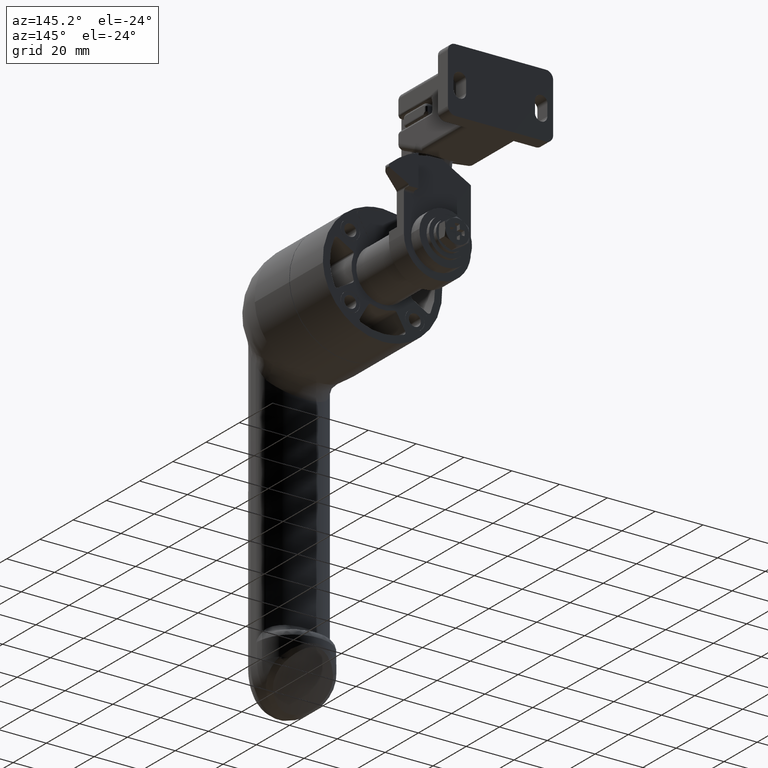
[diagram: clean part render]
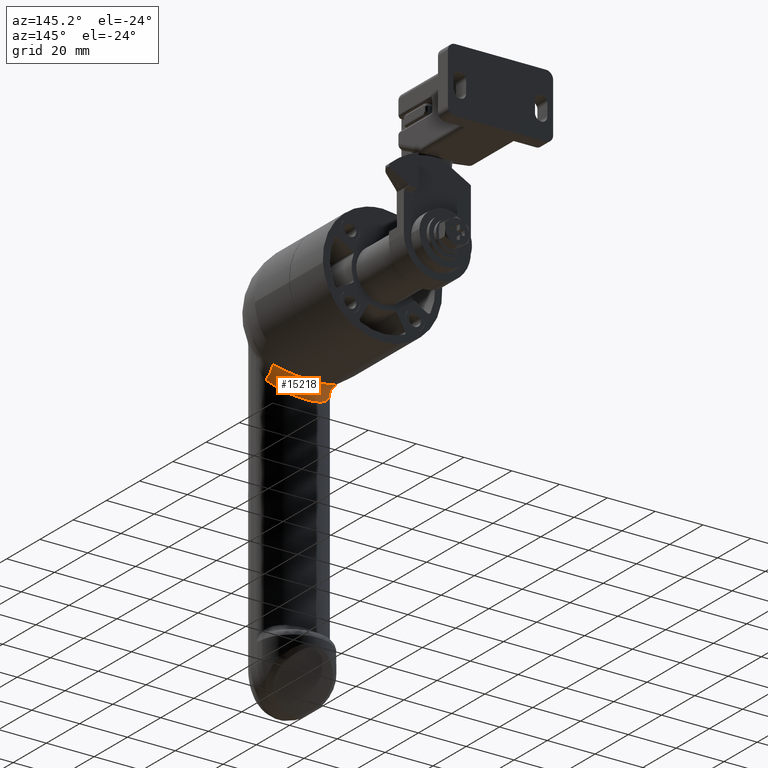
[diagram: same view with one face highlighted and labeled with its STEP entity id]
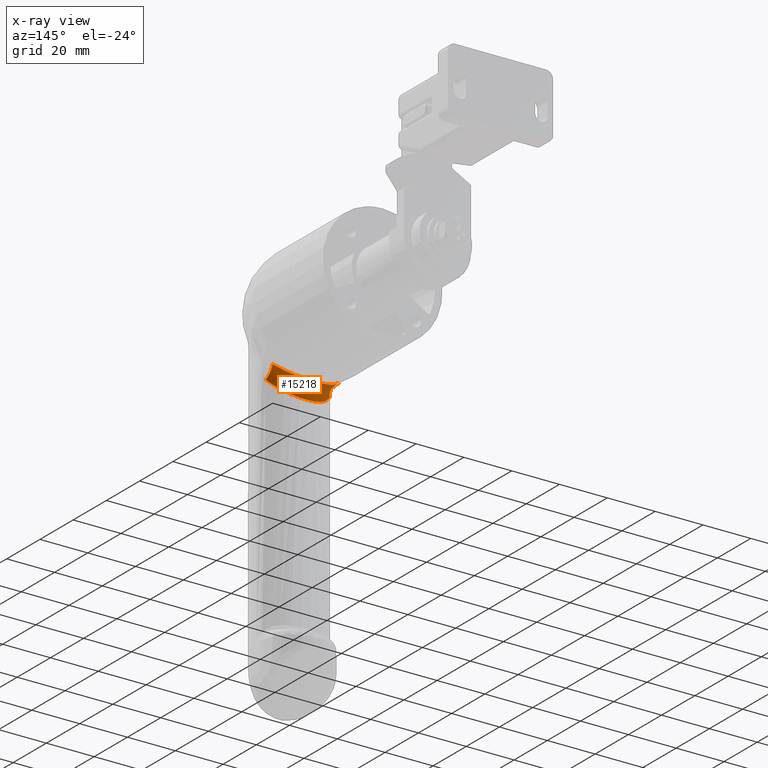
[diagram: x-ray of the same camera — body ghosted, the highlighted face saturated]
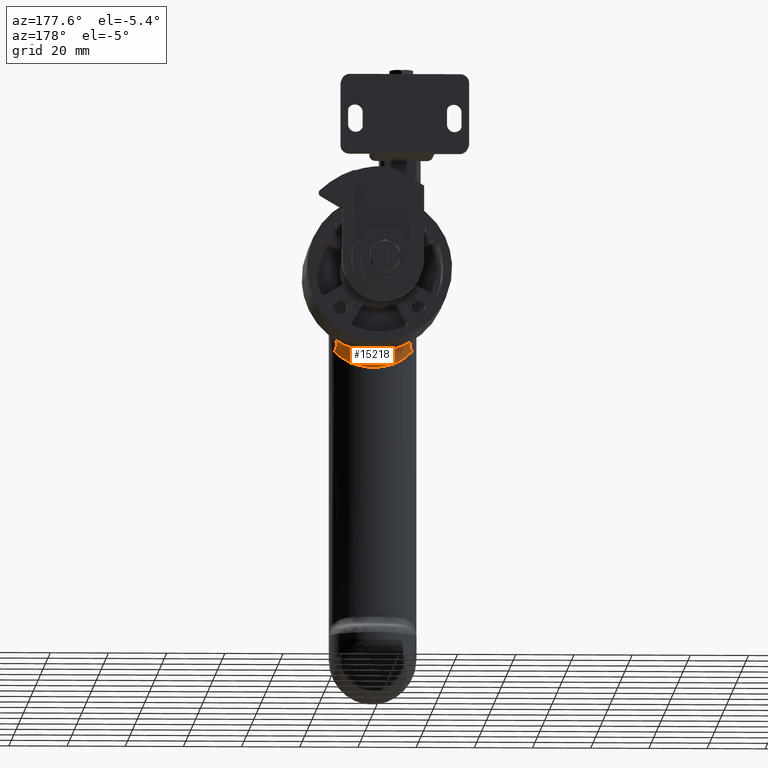
[diagram: same view with one face highlighted and labeled with its STEP entity id]
A machine part, auxiliary view. The second image highlights one B-rep face of the part: STEP entity #15218.
The next image is the same camera in x-ray: the body ghosted, the highlighted face saturated — about 0% of this face is hidden behind the body in this view.
A second angle (auxiliary view) of the same face is appended — the face is thin or edge-on in the first view.
In plain terms, the highlighted face is a freeform B-spline surface patch.
Its self-contained STEP definition (entity closure, byte-faithful):
#13865=CARTESIAN_POINT('',(13.333333333333179,-75.092880149649190,-24.089006736137449));
#13866=VERTEX_POINT('',#13865);
#13911=CARTESIAN_POINT('',(-13.333333333333499,-75.092880149649503,-24.089006736328749));
#13912=VERTEX_POINT('',#13911);
#13918=CARTESIAN_POINT('',(-13.333333333333499,-75.092880149649503,-24.089006736328749));
#13919=CARTESIAN_POINT('',(-12.953682260929110,-74.753309907398716,-24.533486585743820));
#13920=CARTESIAN_POINT('',(-12.550705085847779,-74.418916304546812,-24.958489892095280));
#13921=CARTESIAN_POINT('',(-11.907806965949829,-73.929009828594431,-25.566416686007109));
#13922=CARTESIAN_POINT('',(-11.687092281571580,-73.767658138958325,-25.764121728547629));
#13923=CARTESIAN_POINT('',(-11.345853449083391,-73.529090140687813,-26.053148278817378));
#13924=CARTESIAN_POINT('',(-11.230425931521960,-73.450159145845916,-26.148215548733809));
#13925=CARTESIAN_POINT('',(-10.997049751107740,-73.294174798202889,-26.335061954216489));
#13926=CARTESIAN_POINT('',(-10.878987817795741,-73.217041222842965,-26.426938587265390));
#13927=CARTESIAN_POINT('',(-10.281715847701120,-72.835862412048286,-26.878604282344991));
#13928=CARTESIAN_POINT('',(-9.781672547982286,-72.545254435190230,-27.215304453380870));
#13929=CARTESIAN_POINT('',(-8.733960325046391,-71.998133496520509,-27.838865532411791));
#13930=CARTESIAN_POINT('',(-8.186317692142470,-71.741594607511843,-28.125747760163971));
#13931=CARTESIAN_POINT('',(-7.468938375465602,-71.446320247513469,-28.451653825871720));
#13932=CARTESIAN_POINT('',(-7.323815660863367,-71.388539374137750,-28.515194449875249));
#13933=CARTESIAN_POINT('',(-7.030174477049830,-71.275647159790921,-28.638929968657450));
#13934=CARTESIAN_POINT('',(-6.881573617743552,-71.220514852047685,-28.699146901835871));
#13935=CARTESIAN_POINT('',(-6.433862058406594,-71.060467521921893,-28.873418043679528));
#13936=CARTESIAN_POINT('',(-6.131793586475455,-70.960482768428079,-28.981556263683501));
#13937=CARTESIAN_POINT('',(-5.214734570358906,-70.681227282393451,-29.282081494191630));
#13938=CARTESIAN_POINT('',(-4.588927038479926,-70.522601096949316,-29.450674251572678));
#13939=CARTESIAN_POINT('',(-3.627677066650481,-70.329036908204429,-29.655256439307870));
#13940=CARTESIAN_POINT('',(-3.303495312793796,-70.271923764261828,-29.715376472845509));
#13941=CARTESIAN_POINT('',(-2.811374116093991,-70.197886630437281,-29.793131427408809));
#13942=CARTESIAN_POINT('',(-2.563850336605560,-70.163777859200223,-29.828900031290559));
#13943=CARTESIAN_POINT('',(-2.314083831365283,-70.134147956501224,-29.859921031513259));
#13944=CARTESIAN_POINT('',(-2.147068327981364,-70.115403977255070,-29.879535383608982));
#13945=CARTESIAN_POINT('',(-2.063210329120381,-70.106527203742019,-29.888819281309640));
#13946=CARTESIAN_POINT('',(-1.308753052301455,-70.031490865492074,-29.967263290953401));
#13947=CARTESIAN_POINT('',(-0.640655295446891,-69.999182982970979,-30.000851059532149));
#13948=CARTESIAN_POINT('',(0.690689661880406,-70.000848309309902,-29.999116343598850));
#13949=CARTESIAN_POINT('',(1.353936120480417,-70.034829821737077,-29.963781572097009));
#13950=CARTESIAN_POINT('',(2.345169748793125,-70.135195201659926,-29.858844567561249));
#13951=CARTESIAN_POINT('',(2.674973408612486,-70.176897752358713,-29.815182357221651));
#13952=CARTESIAN_POINT('',(3.168753832122901,-70.251918687474259,-29.736381525260310));
#13953=CARTESIAN_POINT('',(3.333400997877139,-70.279041751676957,-29.707855576673111));
#13954=CARTESIAN_POINT('',(3.661471934808325,-70.337309957299382,-29.646466651801660));
#13955=CARTESIAN_POINT('',(3.824194797521913,-70.368324648367249,-29.613741109428378));
#13956=CARTESIAN_POINT('',(4.631427884554086,-70.532484418306552,-29.440187702741142));
#13957=CARTESIAN_POINT('',(5.256870509650693,-70.692797085815982,-29.269716695606359));
#13958=CARTESIAN_POINT('',(6.470380373573987,-71.064928050157349,-28.869064103030599));
#13959=CARTESIAN_POINT('',(7.058428305708368,-71.276776804472192,-28.638855213195079));
#13960=CARTESIAN_POINT('',(7.913741876383473,-71.629702948299709,-28.249210765465008));
#13961=CARTESIAN_POINT('',(8.194376213493325,-71.753214763192503,-28.111920837399602));
#13962=CARTESIAN_POINT('',(8.746809893951001,-72.011495624000872,-27.822382651020220));
#13963=CARTESIAN_POINT('',(9.018651473734781,-72.146352918898486,-27.670021926731231));
#13964=CARTESIAN_POINT('',(9.810458395392399,-72.561248323370421,-27.196895493478991));
#13965=CARTESIAN_POINT('',(10.309538480561470,-72.852712420614282,-26.858882860775211));
#13966=CARTESIAN_POINT('',(11.256497748222330,-73.458920426520777,-26.140074656710230));
#13967=CARTESIAN_POINT('',(11.704345344827370,-73.773687290748242,-25.759259768228361));
#13968=CARTESIAN_POINT('',(12.553199112363790,-74.421100291281817,-24.955675389492189));
#13969=CARTESIAN_POINT('',(12.954186867272350,-74.753761241032862,-24.532895813223710));
#13970=CARTESIAN_POINT('',(13.333333333333171,-75.092880149649176,-24.089006736137510));
#13971=B_SPLINE_CURVE_WITH_KNOTS('',3,(#13918,#13919,#13920,#13921,#13922,#13923,#13924,#13925,#13926,#13927,#13928,#13929,#13930,#13931,#13932,#13933,#13934,#13935,#13936,#13937,#13938,#13939,#13940,#13941,#13942,#13943,#13944,#13945,#13946,#13947,#13948,#13949,#13950,#13951,#13952,#13953,#13954,#13955,#13956,#13957,#13958,#13959,#13960,#13961,#13962,#13963,#13964,#13965,#13966,#13967,#13968,#13969,#13970),.UNSPECIFIED.,.F.,.U.,(4,2,2,2,2,2,2,2,2,2,2,2,1,2,2,2,2,2,2,2,2,2,2,2,2,2,4),(0.0,0.062499999999998,0.093749999999997,0.109374999999996,0.124999999999996,0.187499999999996,0.249999999999996,0.265624999999996,0.281249999999996,0.312499999999996,0.374999999999997,0.406249999999997,0.421874999999997,0.429687499999997,0.437499999999997,0.499999999999997,0.562499999999997,0.593749999999997,0.609374999999997,0.624999999999997,0.687499999999998,0.749999999999999,0.781249999999999,0.812499999999999,0.874999999999999,0.937500000000000,1.0),.UNSPECIFIED.);
#13972=EDGE_CURVE('',#13912,#13866,#13971,.T.);
#14897=CARTESIAN_POINT('',(13.891201962038741,-70.268496706545804,-20.077515458229449));
#14898=VERTEX_POINT('',#14897);
#14899=CARTESIAN_POINT('',(13.333333333333190,-75.092880149649162,-24.089006736137460));
#14900=CARTESIAN_POINT('',(11.603179456563311,-73.545383477652265,-20.763944317490601));
#14901=CARTESIAN_POINT('',(13.891201962038769,-70.268496706545832,-20.077515458229438));
#14909=(BOUNDED_CURVE()B_SPLINE_CURVE(2,(#14899,#14900,#14901),.UNSPECIFIED.,.F.,.U.)CURVE()GEOMETRIC_REPRESENTATION_ITEM()QUASI_UNIFORM_CURVE()RATIONAL_B_SPLINE_CURVE((1.0,0.776672676964270,1.0))REPRESENTATION_ITEM(''));
#14910=EDGE_CURVE('',#13866,#14898,#14909,.T.);
#14939=CARTESIAN_POINT('',(14.126809920212434,-70.395802500286749,-19.879687179754040));
#14940=CARTESIAN_POINT('',(14.060073021275551,-70.336464047816278,-19.942091366762739));
#14941=CARTESIAN_POINT('',(13.993338118469334,-70.277127370185681,-20.004493687234188));
#14942=CARTESIAN_POINT('',(13.092612256592522,-69.476255894356200,-20.846742368601877));
#14943=CARTESIAN_POINT('',(12.170783702476573,-68.775712345249715,-21.537338923678114));
#14944=CARTESIAN_POINT('',(10.642217982532925,-67.816282871036336,-22.448679042786807));
#14945=CARTESIAN_POINT('',(10.108280491593851,-67.511719808861997,-22.731545333693127));
#14946=CARTESIAN_POINT('',(9.267405791159217,-67.082155672258921,-23.124025981404220));
#14947=CARTESIAN_POINT('',(8.981255167577965,-66.943996623528804,-23.249100322322736));
#14948=CARTESIAN_POINT('',(8.402640462568924,-66.680799729594753,-23.485595501791785));
#14949=CARTESIAN_POINT('',(8.109395259459015,-66.555355294896898,-23.597388014148041));
#14950=CARTESIAN_POINT('',(6.623432979145835,-65.959747357929288,-24.124743570442853));
#14951=CARTESIAN_POINT('',(5.372102587736120,-65.583405490908135,-24.446916659705202));
#14952=CARTESIAN_POINT('',(3.722254677917076,-65.259164543718654,-24.722383181518122));
#14953=CARTESIAN_POINT('',(3.387156472622886,-65.201631061563219,-24.771072571741129));
#14954=CARTESIAN_POINT('',(2.718166319259025,-65.103417925738441,-24.854007022380461));
#14955=CARTESIAN_POINT('',(2.383165171682277,-65.062480187415574,-24.888471753307918));
#14956=CARTESIAN_POINT('',(1.376680442440033,-64.963957440511422,-24.971309808667268));
#14957=CARTESIAN_POINT('',(0.703711474151829,-64.930605299280401,-24.999208501688589));
#14958=CARTESIAN_POINT('',(-0.646098450064478,-64.928755483969084,-25.000758421210957));
#14959=CARTESIAN_POINT('',(-1.322944559527508,-64.960252017833781,-24.974416556524858));
#14960=CARTESIAN_POINT('',(-2.680578572353370,-65.090140618479651,-24.865223201416249));
#14961=CARTESIAN_POINT('',(-3.350503086939298,-65.187684397032370,-24.783076018825199));
#14962=CARTESIAN_POINT('',(-4.661616750066116,-65.442303382415801,-24.566825719939946));
#14963=CARTESIAN_POINT('',(-5.304784237487761,-65.599582909712595,-24.432555673666648));
#14964=CARTESIAN_POINT('',(-6.251333827441839,-65.878409869683722,-24.191672340137544));
#14965=CARTESIAN_POINT('',(-6.563813008163212,-65.978517825542980,-24.104778752174177));
#14966=CARTESIAN_POINT('',(-7.182684276500710,-66.192853672888347,-23.917528915006837));
#14967=CARTESIAN_POINT('',(-7.489725806753028,-66.307382423528665,-23.816903392980755));
#14968=CARTESIAN_POINT('',(-8.991822742816593,-66.907504746523358,-23.285751529081498));
#14969=CARTESIAN_POINT('',(-10.101165832147688,-67.478653974437606,-22.768994703950959));
#14970=CARTESIAN_POINT('',(-11.641232411940409,-68.442379148638167,-21.854153057472121));
#14971=CARTESIAN_POINT('',(-12.134899430277557,-68.782655711472415,-21.524591566695584));
#14972=CARTESIAN_POINT('',(-13.067989007650851,-69.484302108073763,-20.826558366295469));
#14973=CARTESIAN_POINT('',(-13.509178082325926,-69.846633864293963,-20.457222764478132));
#14974=CARTESIAN_POINT('',(-13.993400802232754,-70.277184289991979,-20.004434782587673));
#14975=CARTESIAN_POINT('',(-14.060198392899091,-70.336577891148266,-19.941973553426880));
#14976=CARTESIAN_POINT('',(-14.126997983839891,-70.395973270864360,-19.879510453845327));
#14977=CARTESIAN_POINT('',(14.109045140449435,-70.420833471498753,-19.885121141725488));
#14978=CARTESIAN_POINT('',(14.042343445263548,-70.361584113697177,-19.947479348856657));
#14979=CARTESIAN_POINT('',(13.975642749833137,-70.302335643952048,-20.009836621334529));
#14980=CARTESIAN_POINT('',(13.075281201224804,-69.502568210821650,-20.851568331219859));
#14981=CARTESIAN_POINT('',(12.154034761737170,-68.803132420886328,-21.541598071765836));
#14982=CARTESIAN_POINT('',(10.626836920754059,-67.845380611585369,-22.452043728320866));
#14983=CARTESIAN_POINT('',(10.093432357418903,-67.541373498124557,-22.734606997458766));
#14984=CARTESIAN_POINT('',(9.253491823515729,-67.112627714679377,-23.126636083525206));
#14985=CARTESIAN_POINT('',(8.967672908424287,-66.974736769029946,-23.251561403377117));
#14986=CARTESIAN_POINT('',(8.389757310924100,-66.712059805387113,-23.487766122467956));
#14987=CARTESIAN_POINT('',(8.096880274680332,-66.586868177823220,-23.599416696175467));
#14988=CARTESIAN_POINT('',(6.612837739447754,-65.992468995612654,-24.126089493936995));
#14989=CARTESIAN_POINT('',(5.363348732352754,-65.616969217472587,-24.447781097517609));
#14990=CARTESIAN_POINT('',(3.716112280373017,-65.293467464168941,-24.722823385042950));
#14991=CARTESIAN_POINT('',(3.381550878479133,-65.236065907605706,-24.771436882828219));
#14992=CARTESIAN_POINT('',(2.713644852838322,-65.138079087751493,-24.854241020549217));
#14993=CARTESIAN_POINT('',(2.379193028878141,-65.097236494368914,-24.888650920957115));
#14994=CARTESIAN_POINT('',(1.374369864063181,-64.998943123637432,-24.971356686112603));
#14995=CARTESIAN_POINT('',(0.702530947525883,-64.965669983474285,-24.999209783847665));
#14996=CARTESIAN_POINT('',(-0.645014613178082,-64.963824517423433,-25.000757192678769));
#14997=CARTESIAN_POINT('',(-1.320723544661858,-64.995246403244934,-24.974458412152860));
#14998=CARTESIAN_POINT('',(-2.676113311363195,-65.124832230712926,-24.865439654161179));
#14999=CARTESIAN_POINT('',(-3.344946607377731,-65.222149051298970,-24.783423186972328));
#15000=CARTESIAN_POINT('',(-4.653989675634112,-65.476189898584295,-24.567505099498831));
#15001=CARTESIAN_POINT('',(-5.296172744908835,-65.633116216797859,-24.433437499394032));
#15002=CARTESIAN_POINT('',(-6.241341836899719,-65.911338150528238,-24.192899615792911));
#15003=CARTESIAN_POINT('',(-6.553375454999378,-66.011230844007571,-24.106128588060177));
#15004=CARTESIAN_POINT('',(-7.171388751607937,-66.225113317786978,-23.919136111913357));
#15005=CARTESIAN_POINT('',(-7.478017064425187,-66.339403114842042,-23.818645824112949));
#15006=CARTESIAN_POINT('',(-8.978145689001625,-66.938285301455196,-23.288191608787610));
#15007=CARTESIAN_POINT('',(-10.086264046565978,-67.508327206341036,-22.772049740987761));
#15008=CARTESIAN_POINT('',(-11.624959608095955,-68.470389151792972,-21.858099027691953));
#15009=CARTESIAN_POINT('',(-12.118245468094381,-68.810101388024577,-21.528832787091794));
#15010=CARTESIAN_POINT('',(-13.050723703662774,-69.510648152290969,-20.831356503183915));
#15011=CARTESIAN_POINT('',(-13.491682377657567,-69.872442705151684,-20.462283317576187));
#15012=CARTESIAN_POINT('',(-13.975708393919382,-70.302394545170131,-20.009775106996802));
#15013=CARTESIAN_POINT('',(-14.042474735509595,-70.361701918025219,-19.947356318037379));
#15014=CARTESIAN_POINT('',(-14.109242078975527,-70.421010180828944,-19.884936592440258));
#15015=CARTESIAN_POINT('',(11.796693136783503,-73.678989058452473,-20.592432632223744));
#15016=CARTESIAN_POINT('',(11.732313023970697,-73.634539785643696,-20.649492896044009));
#15017=CARTESIAN_POINT('',(11.667808584059921,-73.590004675006242,-20.706663351299184));
#15018=CARTESIAN_POINT('',(10.784645607054253,-72.980251905332281,-21.489413027596928));
#15019=CARTESIAN_POINT('',(9.913611489310190,-72.470980826571051,-22.111323324539075));
#15020=CARTESIAN_POINT('',(8.534352893991759,-71.803921198000239,-22.909785257243723));
#15021=CARTESIAN_POINT('',(8.062392557460624,-71.597628809278177,-23.153404463109720));
#15022=CARTESIAN_POINT('',(7.335338847416138,-71.313445220809228,-23.486459771457056));
#15023=CARTESIAN_POINT('',(7.090508452460242,-71.223242695252139,-23.591700243775872));
#15024=CARTESIAN_POINT('',(6.600562070089785,-71.053418222769750,-23.789219081378793));
#15025=CARTESIAN_POINT('',(6.354768612398654,-70.973526398261498,-23.881813413513719));
#15026=CARTESIAN_POINT('',(5.121430892982198,-70.598431282375685,-24.315544340753707));
#15027=CARTESIAN_POINT('',(4.122236838960079,-70.375597090723261,-24.570340130433536));
#15028=CARTESIAN_POINT('',(2.839776127086609,-70.187466776043053,-24.785627243119450));
#15029=CARTESIAN_POINT('',(2.580906098695265,-70.154381258224007,-24.823471290351971));
#15030=CARTESIAN_POINT('',(2.066609223086537,-70.098197046012928,-24.887726871903794));
#15031=CARTESIAN_POINT('',(1.810312727760955,-70.074947352275515,-24.914310861004619));
#15032=CARTESIAN_POINT('',(1.042816207272089,-70.019171518378684,-24.978083308577126));
#15033=CARTESIAN_POINT('',(0.533021749553683,-70.000530158771795,-24.999393886224276));
#15034=CARTESIAN_POINT('',(-0.489383230634403,-69.999491996061408,-25.000580784066273));
#15035=CARTESIAN_POINT('',(-1.001998541026532,-70.017088350318630,-24.980464871361036));
#15036=CARTESIAN_POINT('',(-2.036955459030341,-70.090592668400163,-24.896422719176496));
#15037=CARTESIAN_POINT('',(-2.551103183645342,-70.146047148578887,-24.833022424668311));
#15038=CARTESIAN_POINT('',(-3.569684396765780,-70.293676431785769,-24.664089294213106));
#15039=CARTESIAN_POINT('',(-4.075617887160099,-70.385978799469413,-24.558423576474368));
#15040=CARTESIAN_POINT('',(-4.832634016496453,-70.553689095773336,-24.365925481481057));
#15041=CARTESIAN_POINT('',(-5.084642639257738,-70.614482484193559,-24.296072364203724));
#15042=CARTESIAN_POINT('',(-5.588340296813446,-70.746247261865406,-24.144382003852591));
#15043=CARTESIAN_POINT('',(-5.840580267946760,-70.817412514751055,-24.062320231773370));
#15044=CARTESIAN_POINT('',(-7.086668966193813,-71.195101422552781,-23.625643959881991));
#15045=CARTESIAN_POINT('',(-8.046758338888276,-71.569499976570000,-23.190171813644216));
#15046=CARTESIAN_POINT('',(-9.435491587650430,-72.239070120745495,-22.389020170019307));
#15047=CARTESIAN_POINT('',(-9.890713869702095,-72.481066356412796,-22.096112353624907));
#15048=CARTESIAN_POINT('',(-10.768970887430029,-72.992495945454593,-21.465470004194980));
#15049=CARTESIAN_POINT('',(-11.193537132852962,-73.262558508743624,-21.127011389916643));
#15050=CARTESIAN_POINT('',(-11.668262883109271,-73.590318331853410,-20.706260704992008));
#15051=CARTESIAN_POINT('',(-11.733220603291008,-73.635166395951217,-20.648688506216491));
#15052=CARTESIAN_POINT('',(-11.798052980965933,-73.679927921162431,-20.591227398835471));
#15053=CARTESIAN_POINT('',(13.538569303078056,-75.276755630233311,-23.889885496507961));
#15054=CARTESIAN_POINT('',(13.474625885900720,-75.219460614801108,-23.964850046220707));
#15055=CARTESIAN_POINT('',(13.410683426647600,-75.162166457694667,-24.039813472903759));
#15056=CARTESIAN_POINT('',(12.547553972677845,-74.388779335639327,-25.051709829353182));
#15057=CARTESIAN_POINT('',(11.663903342657990,-73.712315765507284,-25.881169454768845));
#15058=CARTESIAN_POINT('',(10.198732777290825,-72.786057885825912,-26.975241471334229));
#15059=CARTESIAN_POINT('',(9.686934485369331,-72.492043594676630,-27.314743342465142));
#15060=CARTESIAN_POINT('',(8.880954284348507,-72.077386620240276,-27.785707491965773));
#15061=CARTESIAN_POINT('',(8.606681282219046,-71.944026033766946,-27.935775002808793));
#15062=CARTESIAN_POINT('',(8.052094958471571,-71.689977965590529,-28.219498819599536));
#15063=CARTESIAN_POINT('',(7.771032867182714,-71.568898223329015,-28.353601190903877));
#15064=CARTESIAN_POINT('',(6.346824809641942,-70.994018724943729,-28.986138271033550));
#15065=CARTESIAN_POINT('',(5.147623905872734,-70.630842518135680,-29.372364688419992));
#15066=CARTESIAN_POINT('',(3.566656663359320,-70.317955508320949,-29.702546502639457));
#15067=CARTESIAN_POINT('',(3.245553027224629,-70.262437221897699,-29.760902891641617));
#15068=CARTESIAN_POINT('',(2.604511627425135,-70.167665050629822,-29.860299416943860));
#15069=CARTESIAN_POINT('',(2.283511253370786,-70.128162287992254,-29.901602838729332));
#15070=CARTESIAN_POINT('',(1.319099696534247,-70.033093291802643,-30.000875703396524));
#15071=CARTESIAN_POINT('',(0.674278794584218,-70.000911512437014,-30.034305995236743));
#15072=CARTESIAN_POINT('',(-0.619075473985348,-69.999126579424569,-30.036163287017839));
#15073=CARTESIAN_POINT('',(-1.267610812063461,-70.029517829719182,-30.004598614449772));
#15074=CARTESIAN_POINT('',(-2.568490019366282,-70.154852782399132,-29.873742093373973));
#15075=CARTESIAN_POINT('',(-3.210422316539372,-70.248977097163689,-29.775294145798163));
#15076=CARTESIAN_POINT('',(-4.466803536353886,-70.494682542871871,-29.516091464750314));
#15077=CARTESIAN_POINT('',(-5.083146156429966,-70.646459242459230,-29.355136834412924));
#15078=CARTESIAN_POINT('',(-5.990264689009923,-70.915548995275074,-29.066321683787788));
#15079=CARTESIAN_POINT('',(-6.289733041927060,-71.012162505843932,-28.962129512813664));
#15080=CARTESIAN_POINT('',(-6.882850493236810,-71.219022921387946,-28.737579158601037));
#15081=CARTESIAN_POINT('',(-7.177122011501476,-71.329559970699037,-28.616897932087909));
#15082=CARTESIAN_POINT('',(-8.616764288591954,-71.908774191363534,-27.979813052621484));
#15083=CARTESIAN_POINT('',(-9.680108486163842,-72.460086386019995,-27.359776753495783));
#15084=CARTESIAN_POINT('',(-11.156319895063000,-73.390514863521531,-26.261510850507232));
#15085=CARTESIAN_POINT('',(-11.629515011879027,-73.719052895120839,-25.865788076884073));
#15086=CARTESIAN_POINT('',(-12.523864211800896,-74.396547700714137,-25.027430658459021));
#15087=CARTESIAN_POINT('',(-12.946716056338175,-74.746435426833941,-24.583754454851018));
#15088=CARTESIAN_POINT('',(-13.410749544050141,-75.162226313979772,-24.039735108759881));
#15089=CARTESIAN_POINT('',(-13.474758122784952,-75.219580329243499,-23.964693315290997));
#15090=CARTESIAN_POINT('',(-13.538767661523329,-75.276935204705282,-23.889650396341878));
#15091=CARTESIAN_POINT('',(13.551944624499418,-75.289024379222084,-23.915205604093693));
#15092=CARTESIAN_POINT('',(13.487991467624152,-75.231618815162321,-23.990282721316714));
#15093=CARTESIAN_POINT('',(13.424040222642848,-75.174214967254741,-24.065357594092475));
#15094=CARTESIAN_POINT('',(12.560885498670489,-74.399430949991256,-25.078648752176495));
#15095=CARTESIAN_POINT('',(11.676981570589579,-73.721591053648410,-25.909337846722373));
#15096=CARTESIAN_POINT('',(10.210960845093863,-72.793273566651621,-27.005110057667796));
#15097=CARTESIAN_POINT('',(9.698804892284910,-72.498579016921894,-27.345149935833383));
#15098=CARTESIAN_POINT('',(8.892160280097425,-72.082925335673579,-27.816877827437565));
#15099=CARTESIAN_POINT('',(8.617646055742579,-71.949238649315262,-27.967190811723967));
#15100=CARTESIAN_POINT('',(8.062541500262190,-71.694559224485076,-28.251383114333670));
#15101=CARTESIAN_POINT('',(7.781201906352401,-71.573173103097517,-28.385709453830934));
#15102=CARTESIAN_POINT('',(6.355525860302419,-70.996827639148123,-29.019302361249256));
#15103=CARTESIAN_POINT('',(5.154852562765482,-70.632641918262493,-29.406217453917368));
#15104=CARTESIAN_POINT('',(3.571748935408554,-70.318869666963153,-29.736992727657359));
#15105=CARTESIAN_POINT('',(3.250204110818706,-70.263193378735764,-29.795454179147686));
#15106=CARTESIAN_POINT('',(2.608268582255945,-70.168150246742371,-29.895030123283824));
#15107=CARTESIAN_POINT('',(2.286813646088108,-70.128533668304385,-29.936408519252467));
#15108=CARTESIAN_POINT('',(1.321024131316044,-70.033190263015342,-30.035861639082182));
#15109=CARTESIAN_POINT('',(0.675262067370675,-70.000914166992672,-30.069353394521691));
#15110=CARTESIAN_POINT('',(-0.619978212848572,-69.999124035896941,-30.071214080395517));
#15111=CARTESIAN_POINT('',(-1.269460782758548,-70.029604400164786,-30.039591350879572));
#15112=CARTESIAN_POINT('',(-2.572201537631712,-70.155301488098900,-29.908496958153670));
#15113=CARTESIAN_POINT('',(-3.215034875366913,-70.249697189178718,-29.809869995213205));
#15114=CARTESIAN_POINT('',(-4.473110755036774,-70.496095721393303,-29.550203588089332));
#15115=CARTESIAN_POINT('',(-5.090251084957428,-70.648296108963834,-29.388962490629094));
#15116=CARTESIAN_POINT('',(-5.998471651384172,-70.918114382190339,-29.099644897911546));
#15117=CARTESIAN_POINT('',(-6.298292708589862,-71.014987197183501,-28.995272166454594));
#15118=CARTESIAN_POINT('',(-6.892082561225466,-71.222394619072645,-28.770336496886280));
#15119=CARTESIAN_POINT('',(-7.186674346253153,-71.333220315738757,-28.649449740556094));
#15120=CARTESIAN_POINT('',(-8.627822663507322,-71.913932079848550,-28.011281702690273));
#15121=CARTESIAN_POINT('',(-9.692036658787066,-72.466590238513277,-27.390226909928046));
#15122=CARTESIAN_POINT('',(-11.169103181014655,-73.399068446317131,-26.290277901525943));
#15123=CARTESIAN_POINT('',(-11.642508470787316,-73.728303939895085,-25.893957558384653));
#15124=CARTESIAN_POINT('',(-12.537136245509993,-74.407166364519071,-25.054369311206361));
#15125=CARTESIAN_POINT('',(-12.960056224578928,-74.757726440814722,-24.610057265952349));
#15126=CARTESIAN_POINT('',(-13.424103380021341,-75.174272891911031,-24.065281743577785));
#15127=CARTESIAN_POINT('',(-13.488117786442221,-75.231734668157046,-23.990131015276919));
#15128=CARTESIAN_POINT('',(-13.552134108818448,-75.289198164237831,-23.914978037709890));
#15136=(BOUNDED_SURFACE()B_SPLINE_SURFACE(3,2,((#14939,#14977,#15015,#15053,#15091),(#14940,#14978,#15016,#15054,#15092),(#14941,#14979,#15017,#15055,#15093),(#14942,#14980,#15018,#15056,#15094),(#14943,#14981,#15019,#15057,#15095),(#14944,#14982,#15020,#15058,#15096),(#14945,#14983,#15021,#15059,#15097),(#14946,#14984,#15022,#15060,#15098),(#14947,#14985,#15023,#15061,#15099),(#14948,#14986,#15024,#15062,#15100),(#14949,#14987,#15025,#15063,#15101),(#14950,#14988,#15026,#15064,#15102),(#14951,#14989,#15027,#15065,#15103),(#14952,#14990,#15028,#15066,#15104),(#14953,#14991,#15029,#15067,#15105),(#14954,#14992,#15030,#15068,#15106),(#14955,#14993,#15031,#15069,#15107),(#14956,#14994,#15032,#15070,#15108),(#14957,#14995,#15033,#15071,#15109),(#14958,#14996,#15034,#15072,#15110),(#14959,#14997,#15035,#15073,#15111),(#14960,#14998,#15036,#15074,#15112),(#14961,#14999,#15037,#15075,#15113),(#14962,#15000,#15038,#15076,#15114),(#14963,#15001,#15039,#15077,#15115),(#14964,#15002,#15040,#15078,#15116),(#14965,#15003,#15041,#15079,#15117),(#14966,#15004,#15042,#15080,#15118),(#14967,#15005,#15043,#15081,#15119),(#14968,#15006,#15044,#15082,#15120),(#14969,#15007,#15045,#15083,#15121),(#14970,#15008,#15046,#15084,#15122),(#14971,#15009,#15047,#15085,#15123),(#14972,#15010,#15048,#15086,#15124),(#14973,#15011,#15049,#15087,#15125),(#14974,#15012,#15050,#15088,#15126),(#14975,#15013,#15051,#15089,#15127),(#14976,#15014,#15052,#15090,#15128)),.UNSPECIFIED.,.F.,.F.,.U.)B_SPLINE_SURFACE_WITH_KNOTS((4,2,2,2,2,2,2,2,2,2,2,2,2,2,2,2,2,2,4),(3,1,1,3),(0.0,0.342690138974565,4.626316876156337,6.768130244747224,7.839036929042667,8.909943613338109,13.193570350519879,14.264477034815320,15.335383719110769,17.477197087701651,19.619010456292539,21.760823824883420,23.902637193474309,24.973543877769750,26.044450562065201,30.328077299246971,32.469890667837873,34.611704036428748,34.954394175403337),(0.0,0.082868144915018,8.364886874606885,8.447712649574724),.UNSPECIFIED.)GEOMETRIC_REPRESENTATION_ITEM()RATIONAL_B_SPLINE_SURFACE(((1.004424067335376,1.002212033667688,0.778924648484777,1.002210902669163,1.004421805338327),(1.004439089172314,1.002219544586157,0.778173991311274,1.002218409747348,1.004436819494696),(1.004454111009251,1.002227055504626,0.777423334137771,1.002225916825533,1.004451833651065),(1.004656905807907,1.002328452903954,0.767289462295478,1.002327262381025,1.004654524762051),(1.004837342965412,1.002418671482706,0.758272825567851,1.002417434831601,1.004834869663202),(1.005087693189172,1.002543846594586,0.745762558538859,1.002542545942255,1.005085091884510),(1.005167755062274,1.002583877531137,0.741761781562141,1.002582556411247,1.005165112822493),(1.005281360952669,1.002640680476334,0.736084774353757,1.002639330313465,1.005278660626930),(1.005318021583738,1.002659010791869,0.734252803615968,1.002657651256828,1.005315302513656),(1.005388059675915,1.002694029837957,0.730752925636358,1.002692652397904,1.005385304795808),(1.005421544446892,1.002710772223446,0.729079656006182,1.002709386223119,1.005418772446238),(1.005580942641682,1.002790471320841,0.721114358628710,1.002789044570881,1.005578089141761),(1.005682993134138,1.002841496567069,0.716014786949163,1.002840043728230,1.005680087456459),(1.005771244170676,1.002885622085338,0.711604788763043,1.002884146685406,1.005768293370813),(1.005786930086834,1.002893465043417,0.710820946844380,1.002891985633432,1.005783971266863),(1.005813732766417,1.002906866383208,0.709481588430251,1.002905380121204,1.005810760242409),(1.005824919569635,1.002912459784817,0.708922571971807,1.002910970662943,1.005821941325887),(1.005851857920613,1.002925928960306,0.707576433913713,1.002924432951730,1.005848865903460),(1.005860997727766,1.002930498863883,0.707119708026414,1.002929000518745,1.005858001037489),(1.005861504290164,1.002930752145082,0.707094394564448,1.002929253670442,1.005858507340885),(1.005852872321785,1.002926436160893,0.707525743207905,1.002924939892988,1.005849879785975),(1.005817355533607,1.002908677766803,0.709300554899501,1.002907190578651,1.005814381157302),(1.005790705225002,1.002895352612501,0.710632299173743,1.002893872237414,1.005787744474828),(1.005721392563487,1.002860696281743,0.714095926611428,1.002859233626214,1.005718467252428),(1.005678675919404,1.002839337959702,0.716230522762470,1.002837886224545,1.005675772449090),(1.005603317536486,1.002801658768243,0.719996261330712,1.002800226298213,1.005600452596426),(1.005576314941554,1.002788157470777,0.721345609727499,1.002786731903874,1.005573463807747),(1.005518651003661,1.002759325501830,0.724227138052734,1.002757914676526,1.005515829353052),(1.005487909712474,1.002743954856237,0.725763313079012,1.002742551889844,1.005485103779689),(1.005327293357646,1.002663646678823,0.733789483209534,1.002662284773483,1.005324569546966),(1.005175838689658,1.002587919344829,0.741357834101584,1.002586596158385,1.005173192316771),(1.004924299750458,1.002462149875229,0.753927502505715,1.002460890993903,1.004921781987806),(1.004836088984801,1.002418044492401,0.758335488313085,1.002416808161872,1.004833616323743),(1.004655630204616,1.002327815102308,0.767353205549080,1.002326624905483,1.004653249810967),(1.004563125930489,1.002281562965245,0.771975742542501,1.002280396416839,1.004560792833678),(1.004454093952746,1.002227046976373,0.777424186469458,1.002225908301641,1.004451816603281),(1.004439055059265,1.002219527529632,0.778175695976624,1.002218392699544,1.004436785399089),(1.004424016165783,1.002212008082892,0.778927205483791,1.002210877097448,1.004421754194896)))REPRESENTATION_ITEM('')SURFACE());
#15137=CARTESIAN_POINT('',(-7.658180E-011,-65.000000002150387,-25.0));
#15138=VERTEX_POINT('',#15137);
#15139=CARTESIAN_POINT('',(-13.891201962085200,-70.268496706546102,-20.077515458388849));
#15140=VERTEX_POINT('',#15139);
#15141=CARTESIAN_POINT('',(-7.658180E-011,-65.000000002150387,-25.0));
#15142=CARTESIAN_POINT('',(-0.670921113094469,-65.000000002054904,-25.000000000003329));
#15143=CARTESIAN_POINT('',(-1.343748201794577,-65.032105797424634,-24.973107050675221));
#15144=CARTESIAN_POINT('',(-2.187251110567828,-65.113653165135403,-24.904445443956540));
#15145=CARTESIAN_POINT('',(-2.355899305862084,-65.132029650330892,-24.888961049225699));
#15146=CARTESIAN_POINT('',(-2.691034000414688,-65.172642347789406,-24.854699566306980));
#15147=CARTESIAN_POINT('',(-2.857810327029876,-65.194905192517254,-24.835900060002320));
#15148=CARTESIAN_POINT('',(-3.355802809415278,-65.267454848684167,-24.774551560260079));
#15149=CARTESIAN_POINT('',(-3.684684317466157,-65.323499136280148,-24.727057567678500));
#15150=CARTESIAN_POINT('',(-4.662209823160938,-65.513941203309287,-24.565052505158270));
#15151=CARTESIAN_POINT('',(-5.301759882871806,-65.670602854383787,-24.431090660213101));
#15152=CARTESIAN_POINT('',(-6.243273535535911,-65.948195297905315,-24.190882785104218));
#15153=CARTESIAN_POINT('',(-6.554136361295891,-66.047838149876469,-24.104250982030049));
#15154=CARTESIAN_POINT('',(-7.015961001646562,-66.207823603998719,-23.964253972471472));
#15155=CARTESIAN_POINT('',(-7.169220018805124,-66.262929674224623,-23.915891627168008));
#15156=CARTESIAN_POINT('',(-7.473981188482083,-66.376535289468109,-23.815852328567079));
#15157=CARTESIAN_POINT('',(-7.624896912408323,-66.434814329283796,-23.764369557120990));
#15158=CARTESIAN_POINT('',(-8.372311241395021,-66.733345903241641,-23.499709489612432));
#15159=CARTESIAN_POINT('',(-8.947380085809535,-66.994955779230949,-23.264869392842559));
#15160=CARTESIAN_POINT('',(-10.054789211731800,-67.558417166648852,-22.749460125333361));
#15161=CARTESIAN_POINT('',(-10.587114617871810,-67.860289619694143,-22.468882538759850));
#15162=CARTESIAN_POINT('',(-11.354780895492491,-68.340024150201046,-22.012754401044909));
#15163=CARTESIAN_POINT('',(-11.605608760926630,-68.504487218180998,-21.854764889501130));
#15164=CARTESIAN_POINT('',(-12.096735581310490,-68.841655738677147,-21.526926608998689));
#15165=CARTESIAN_POINT('',(-12.335762740758740,-69.013480458529983,-21.357933867650932));
#15166=CARTESIAN_POINT('',(-13.033994036817401,-69.537625580886399,-20.835656553818030));
#15167=CARTESIAN_POINT('',(-13.474381097252181,-69.898612691435417,-20.467110617075090));
#15168=CARTESIAN_POINT('',(-13.891201962085200,-70.268496706546102,-20.077515458388849));
#15169=B_SPLINE_CURVE_WITH_KNOTS('',3,(#15141,#15142,#15143,#15144,#15145,#15146,#15147,#15148,#15149,#15150,#15151,#15152,#15153,#15154,#15155,#15156,#15157,#15158,#15159,#15160,#15161,#15162,#15163,#15164,#15165,#15166,#15167,#15168),.UNSPECIFIED.,.F.,.U.,(4,2,2,2,2,2,2,2,2,2,2,2,2,4),(0.0,0.125000000000001,0.156250000000001,0.187500000000001,0.250000000000000,0.375000000000000,0.437500000000000,0.468750000000000,0.500000000000000,0.624999999999999,0.749999999999998,0.812499999999998,0.874999999999998,1.0),.UNSPECIFIED.);
#15170=EDGE_CURVE('',#15138,#15140,#15169,.T.);
#15171=ORIENTED_EDGE('',*,*,#15170,.F.);
#15172=CARTESIAN_POINT('',(13.891201962038741,-70.268496706545804,-20.077515458229449));
#15173=CARTESIAN_POINT('',(13.473308900113031,-69.897661230994231,-20.468112780754151));
#15174=CARTESIAN_POINT('',(13.033379724531009,-69.537252066895789,-20.836003148257561));
#15175=CARTESIAN_POINT('',(12.107666335349281,-68.842166822816878,-21.528662498569890));
#15176=CARTESIAN_POINT('',(11.621894726823960,-68.507474236616773,-21.853433685989231));
#15177=CARTESIAN_POINT('',(10.601700667370990,-67.868894163845638,-22.460809023336680));
#15178=CARTESIAN_POINT('',(10.067298881318770,-67.564985365376401,-22.743422668048769));
#15179=CARTESIAN_POINT('',(9.366198416520026,-67.208005356916175,-23.069995908433992));
#15180=CARTESIAN_POINT('',(9.224254921929891,-67.137734548096347,-23.133991527656050));
#15181=CARTESIAN_POINT('',(8.938867395535315,-67.000480719685044,-23.258478732769870));
#15182=CARTESIAN_POINT('',(8.795198360858750,-66.933380315041674,-23.319078092359710));
#15183=CARTESIAN_POINT('',(8.361268615736771,-66.736711387396696,-23.496014467389610));
#15184=CARTESIAN_POINT('',(8.068087038057310,-66.611773337292263,-23.607493865426420));
#15185=CARTESIAN_POINT('',(7.176819969839356,-66.255964059035378,-23.922916353716680));
#15186=CARTESIAN_POINT('',(6.567044537094632,-66.044057334151589,-24.107910106947081));
#15187=CARTESIAN_POINT('',(5.315378890244698,-65.674223158968360,-24.427978324983059));
#15188=CARTESIAN_POINT('',(4.673499262472759,-65.516274094321901,-24.563064898398910));
#15189=CARTESIAN_POINT('',(3.849786458951302,-65.355631564247062,-24.699723941479451));
#15190=CARTESIAN_POINT('',(3.683755004510748,-65.325311037697958,-24.725470533321751));
#15191=CARTESIAN_POINT('',(3.350489570380262,-65.268623067643091,-24.773539019767661));
#15192=CARTESIAN_POINT('',(3.183733348437810,-65.242331129672863,-24.795797073270339));
#15193=CARTESIAN_POINT('',(2.683098078806497,-65.169567761011990,-24.857324085438218));
#15194=CARTESIAN_POINT('',(2.348852709906225,-65.129205197462738,-24.891351281492572));
#15195=CARTESIAN_POINT('',(1.344671815115887,-65.032338774696939,-24.972910068831439));
#15196=CARTESIAN_POINT('',(0.673295837673134,-65.000000002055117,-24.999999999996671));
#15197=CARTESIAN_POINT('',(-7.658180E-011,-65.000000002150387,-25.0));
#15198=B_SPLINE_CURVE_WITH_KNOTS('',3,(#15172,#15173,#15174,#15175,#15176,#15177,#15178,#15179,#15180,#15181,#15182,#15183,#15184,#15185,#15186,#15187,#15188,#15189,#15190,#15191,#15192,#15193,#15194,#15195,#15196,#15197),.UNSPECIFIED.,.F.,.U.,(4,2,2,2,2,2,2,2,2,2,2,2,4),(0.0,0.125000000000000,0.250000000000000,0.375000000000000,0.406249999999999,0.437499999999999,0.499999999999999,0.624999999999999,0.749999999999999,0.781249999999999,0.812499999999999,0.874999999999999,1.0),.UNSPECIFIED.);
#15199=EDGE_CURVE('',#14898,#15138,#15198,.T.);
#15200=ORIENTED_EDGE('',*,*,#15199,.F.);
#15201=ORIENTED_EDGE('',*,*,#14910,.F.);
#15202=ORIENTED_EDGE('',*,*,#13972,.F.);
#15203=CARTESIAN_POINT('',(-13.333333333333499,-75.092880149649432,-24.089006736328781));
#15204=CARTESIAN_POINT('',(-11.603179456575983,-73.545383477663606,-20.763944317638547));
#15205=CARTESIAN_POINT('',(-13.891201962085180,-70.268496706546102,-20.077515458388831));
#15213=(BOUNDED_CURVE()B_SPLINE_CURVE(2,(#15203,#15204,#15205),.UNSPECIFIED.,.F.,.U.)CURVE()GEOMETRIC_REPRESENTATION_ITEM()QUASI_UNIFORM_CURVE()RATIONAL_B_SPLINE_CURVE((1.0,0.776672676962288,1.0))REPRESENTATION_ITEM(''));
#15214=EDGE_CURVE('',#13912,#15140,#15213,.T.);
#15215=ORIENTED_EDGE('',*,*,#15214,.T.);
#15216=EDGE_LOOP('',(#15171,#15200,#15201,#15202,#15215));
#15217=FACE_OUTER_BOUND('',#15216,.T.);
#15218=ADVANCED_FACE('',(#15217),#15136,.F.);